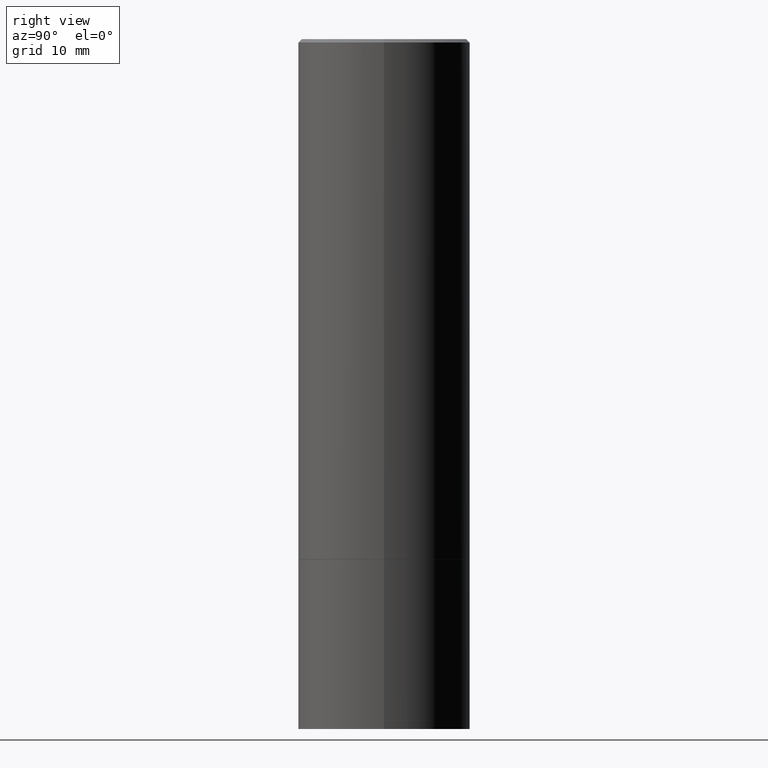
[diagram: clean part render]
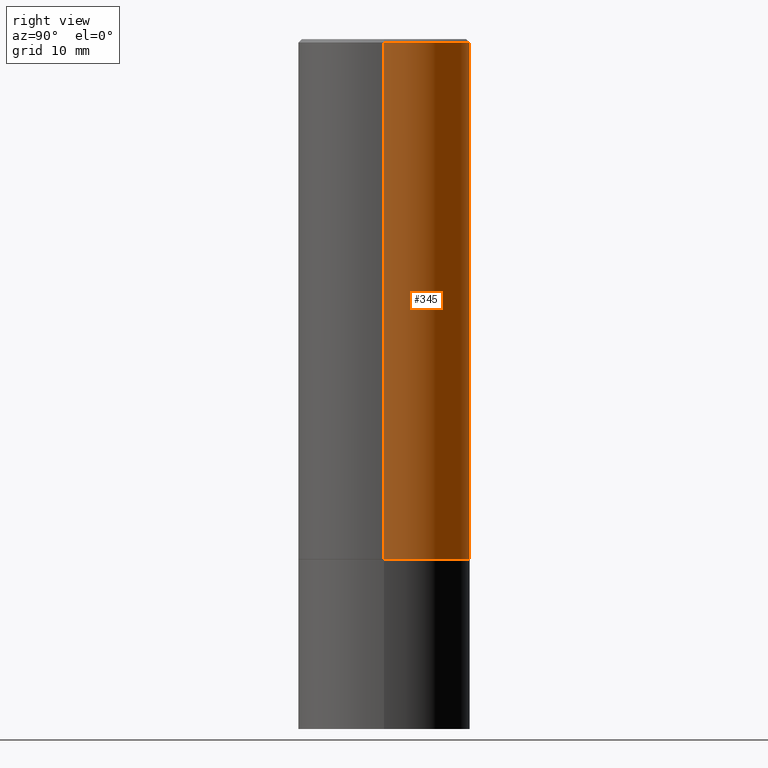
[diagram: same view with one face highlighted and labeled with its STEP entity id]
A machine part, right view. The second image highlights one B-rep face of the part: STEP entity #345.
In plain terms, the highlighted cylindrical surface (partial cylindrical patch) has radius 12.7 mm, axis along (-0, 0, 1).
Its self-contained STEP definition (entity closure, byte-faithful):
#23 = VERTEX_POINT ( 'NONE', #57 ) ;
#26 = DIRECTION ( 'NONE',  ( -2.445468806185136597E-29, 3.491481338843145583E-15, 1.000000000000000000 ) ) ;
#44 = CARTESIAN_POINT ( 'NONE',  ( 4.890937612370302060E-31, -6.982962677686331052E-17, -0.02000000000000011491 ) ) ;
#57 = CARTESIAN_POINT ( 'NONE',  ( 0.5000000000000000000, -1.401725013105356586E-14, -3.014700000000000379 ) ) ;
#67 = LINE ( 'NONE', #277, #162 ) ;
#71 = EDGE_CURVE ( 'NONE', #23, #148, #118, .T. ) ;
#74 = EDGE_LOOP ( 'NONE', ( #173, #313, #294, #201 ) ) ;
#75 = VERTEX_POINT ( 'NONE', #330 ) ;
#81 = CYLINDRICAL_SURFACE ( 'NONE', #127, 0.4999999999999997780 ) ;
#95 = DIRECTION ( 'NONE',  ( 1.000000000000000000, -6.982962677686266711E-15, 0.000000000000000000 ) ) ;
#101 = CARTESIAN_POINT ( 'NONE',  ( -0.5000000000000000000, -1.745085530693144802E-15, -3.014700000000000379 ) ) ;
#118 = LINE ( 'NONE', #295, #145 ) ;
#127 = AXIS2_PLACEMENT_3D ( 'NONE', #285, #26, #315 ) ;
#145 = VECTOR ( 'NONE', #266, 39.37007874015748143 ) ;
#148 = VERTEX_POINT ( 'NONE', #193 ) ;
#162 = VECTOR ( 'NONE', #272, 39.37007874015748143 ) ;
#167 = DIRECTION ( 'NONE',  ( 1.000000000000000000, -6.982962677686266711E-15, 0.000000000000000000 ) ) ;
#173 = ORIENTED_EDGE ( 'NONE', *, *, #252, .T. ) ;
#177 = EDGE_CURVE ( 'NONE', #206, #75, #67, .T. ) ;
#193 = CARTESIAN_POINT ( 'NONE',  ( 0.4999999999999996114, -3.500078625662626318E-15, -0.02000000000000011491 ) ) ;
#201 = ORIENTED_EDGE ( 'NONE', *, *, #71, .F. ) ;
#206 = VERTEX_POINT ( 'NONE', #101 ) ;
#227 = CIRCLE ( 'NONE', #358, 0.4999999999999996114 ) ;
#246 = CIRCLE ( 'NONE', #301, 0.5000000000000000000 ) ;
#252 = EDGE_CURVE ( 'NONE', #23, #206, #246, .T. ) ;
#266 = DIRECTION ( 'NONE',  ( -2.445468806185136877E-29, 3.491481338843145188E-15, 1.000000000000000000 ) ) ;
#270 = DIRECTION ( 'NONE',  ( -2.445468806185136597E-29, 3.491481338843145583E-15, 1.000000000000000000 ) ) ;
#272 = DIRECTION ( 'NONE',  ( -2.445468806185136877E-29, 3.491481338843145188E-15, 1.000000000000000000 ) ) ;
#277 = CARTESIAN_POINT ( 'NONE',  ( -0.4999999999999997780, 3.552713678800499352E-15, -2.459467545127452050E-29 ) ) ;
#285 = CARTESIAN_POINT ( 'NONE',  ( 0.000000000000000000, 0.000000000000000000, 0.000000000000000000 ) ) ;
#293 = DIRECTION ( 'NONE',  ( -2.445468806185136597E-29, 3.491481338843145583E-15, 1.000000000000000000 ) ) ;
#294 = ORIENTED_EDGE ( 'NONE', *, *, #323, .F. ) ;
#295 = CARTESIAN_POINT ( 'NONE',  ( 0.4999999999999997780, -3.491481338843131778E-15, 2.438088387897966775E-29 ) ) ;
#301 = AXIS2_PLACEMENT_3D ( 'NONE', #308, #270, #95 ) ;
#308 = CARTESIAN_POINT ( 'NONE',  ( 7.372354810006331876E-29, -1.052576879221043250E-14, -3.014700000000000379 ) ) ;
#313 = ORIENTED_EDGE ( 'NONE', *, *, #177, .T. ) ;
#315 = DIRECTION ( 'NONE',  ( 1.000000000000000000, -6.982962677686266711E-15, 4.876176775795935793E-29 ) ) ;
#323 = EDGE_CURVE ( 'NONE', #148, #75, #227, .T. ) ;
#330 = CARTESIAN_POINT ( 'NONE',  ( -0.4999999999999996114, 3.421651712066267296E-15, -0.02000000000000011491 ) ) ;
#345 = ADVANCED_FACE ( 'NONE', ( #350 ), #81, .T. ) ;
#350 = FACE_OUTER_BOUND ( 'NONE', #74, .T. ) ;
#358 = AXIS2_PLACEMENT_3D ( 'NONE', #44, #293, #167 ) ;